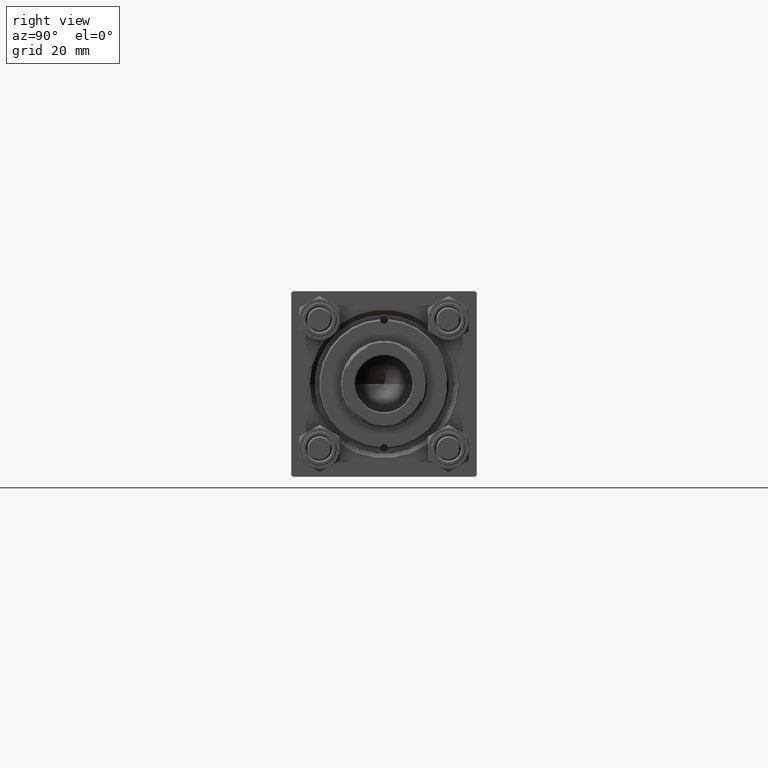
[diagram: clean part render]
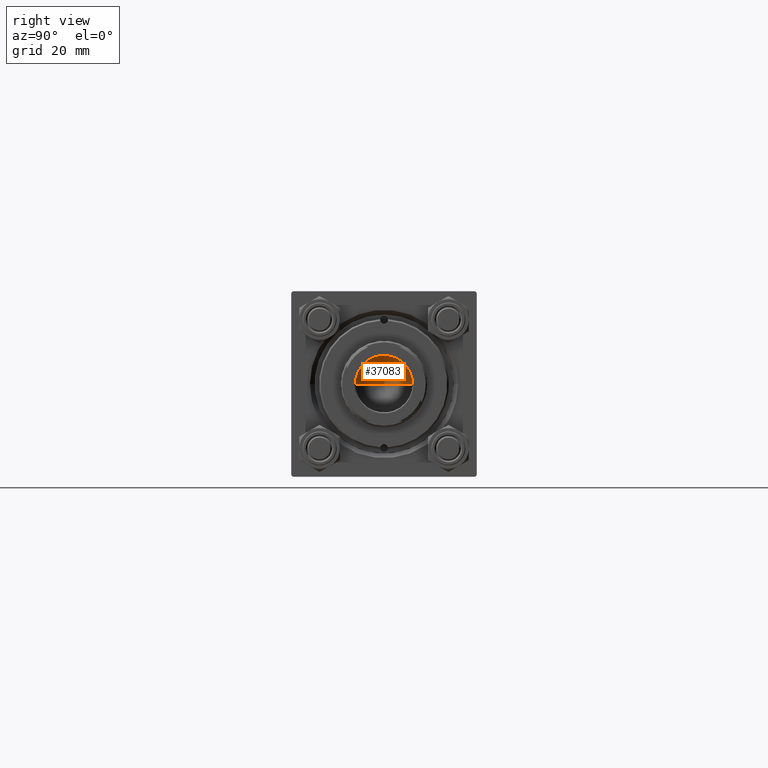
[diagram: same view with one face highlighted and labeled with its STEP entity id]
A machine part, right view. The second image highlights one B-rep face of the part: STEP entity #37083.
In plain terms, the highlighted conical surface has half-angle 59 deg.
Its self-contained STEP definition (entity closure, byte-faithful):
#1593 = LINE ( 'NONE', #17113, #48383 ) ;
#2383 = DIRECTION ( 'NONE',  ( 1.000000000000000000, 0.000000000000000000, 0.000000000000000000 ) ) ;
#4873 = DIRECTION ( 'NONE',  ( -0.000000000000000000, -0.000000000000000000, 1.000000000000000000 ) ) ;
#6207 = CARTESIAN_POINT ( 'NONE',  ( 0.000000000000000000, 0.000000000000000000, 101.0000000000000000 ) ) ;
#7769 = ORIENTED_EDGE ( 'NONE', *, *, #46730, .T. ) ;
#8470 = EDGE_CURVE ( 'NONE', #32200, #46298, #21227, .T. ) ;
#12016 = DIRECTION ( 'NONE',  ( 1.000000000000000000, 0.000000000000000000, 0.000000000000000000 ) ) ;
#14090 = FACE_OUTER_BOUND ( 'NONE', #28224, .T. ) ;
#16405 = ORIENTED_EDGE ( 'NONE', *, *, #35061, .F. ) ;
#17113 = CARTESIAN_POINT ( 'NONE',  ( -9.249999999999992895, 1.132798289211300712E-15, 101.0000000000000000 ) ) ;
#18941 = AXIS2_PLACEMENT_3D ( 'NONE', #6207, #21713, #2383 ) ;
#21227 = CIRCLE ( 'NONE', #36698, 9.249999999999992895 ) ;
#21713 = DIRECTION ( 'NONE',  ( -0.000000000000000000, -0.000000000000000000, 1.000000000000000000 ) ) ;
#22854 = CARTESIAN_POINT ( 'NONE',  ( 9.249999999999992895, 0.000000000000000000, 101.0000000000000000 ) ) ;
#24590 = CONICAL_SURFACE ( 'NONE', #18941, 9.249999999999992895, 1.029744258676653423 ) ;
#26838 = VERTEX_POINT ( 'NONE', #47012 ) ;
#28224 = EDGE_LOOP ( 'NONE', ( #16405, #7769, #38133 ) ) ;
#28280 = CARTESIAN_POINT ( 'NONE',  ( 0.000000000000000000, 0.000000000000000000, 101.0000000000000000 ) ) ;
#32200 = VERTEX_POINT ( 'NONE', #35042 ) ;
#32566 = CARTESIAN_POINT ( 'NONE',  ( 9.249999999999992895, 0.000000000000000000, 101.0000000000000000 ) ) ;
#35042 = CARTESIAN_POINT ( 'NONE',  ( -9.249999999999992895, 1.132798289211300712E-15, 101.0000000000000000 ) ) ;
#35061 = EDGE_CURVE ( 'NONE', #26838, #46298, #49572, .T. ) ;
#36698 = AXIS2_PLACEMENT_3D ( 'NONE', #28280, #4873, #12016 ) ;
#37083 = ADVANCED_FACE ( 'NONE', ( #14090 ), #24590, .F. ) ;
#38133 = ORIENTED_EDGE ( 'NONE', *, *, #8470, .T. ) ;
#38372 = DIRECTION ( 'NONE',  ( 0.8571673007021117785, 0.000000000000000000, 0.5150380749100550437 ) ) ;
#43198 = VECTOR ( 'NONE', #38372, 1000.000000000000000 ) ;
#46298 = VERTEX_POINT ( 'NONE', #32566 ) ;
#46730 = EDGE_CURVE ( 'NONE', #26838, #32200, #1593, .T. ) ;
#47012 = CARTESIAN_POINT ( 'NONE',  ( -9.769621978240258809E-15, 0.000000000000000000, 95.44203927399506426 ) ) ;
#47409 = DIRECTION ( 'NONE',  ( -0.8571673007021117785, 1.049727191138617956E-16, 0.5150380749100550437 ) ) ;
#48383 = VECTOR ( 'NONE', #47409, 1000.000000000000000 ) ;
#49572 = LINE ( 'NONE', #22854, #43198 ) ;